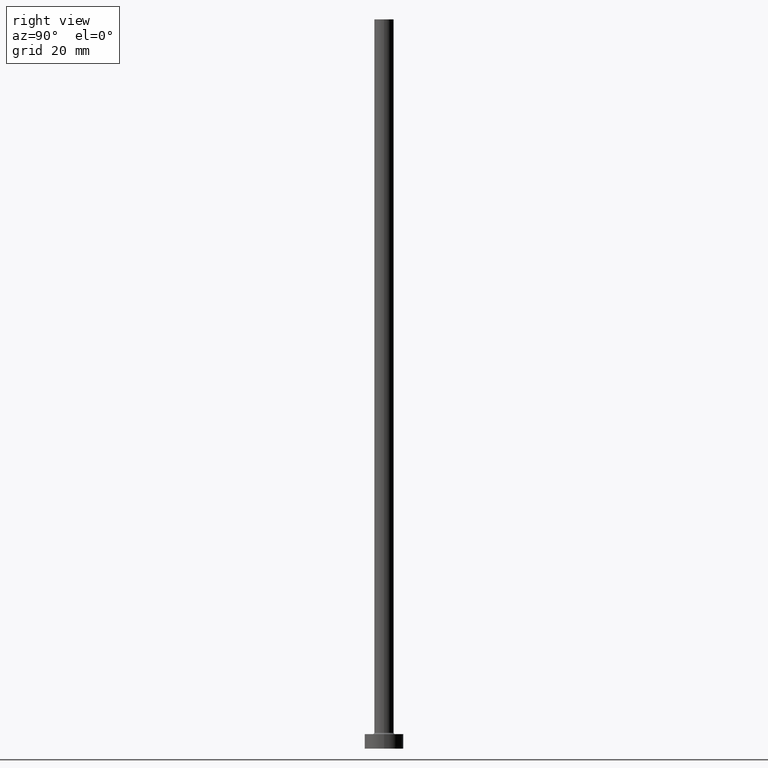
[diagram: clean part render]
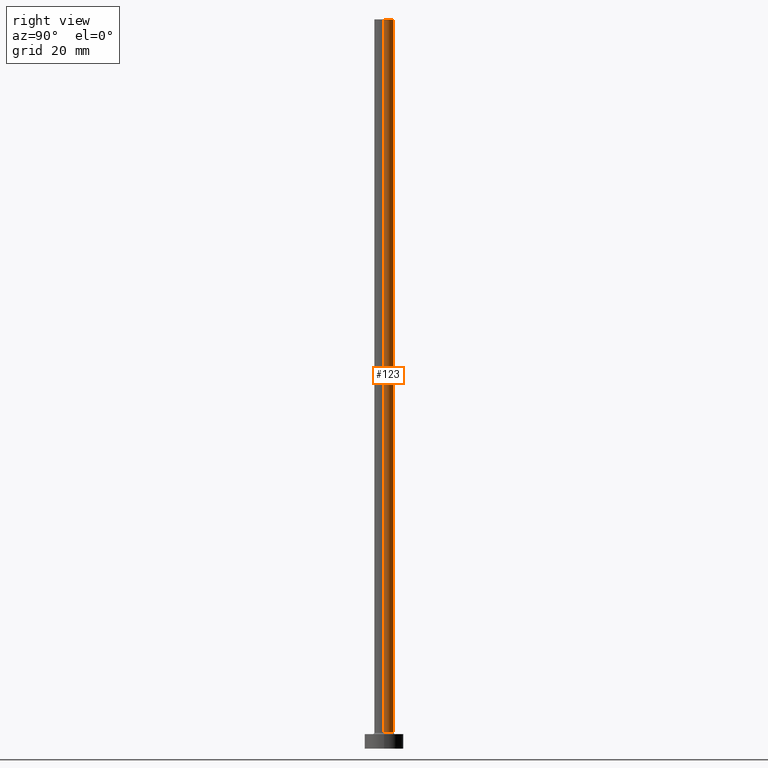
[diagram: same view with one face highlighted and labeled with its STEP entity id]
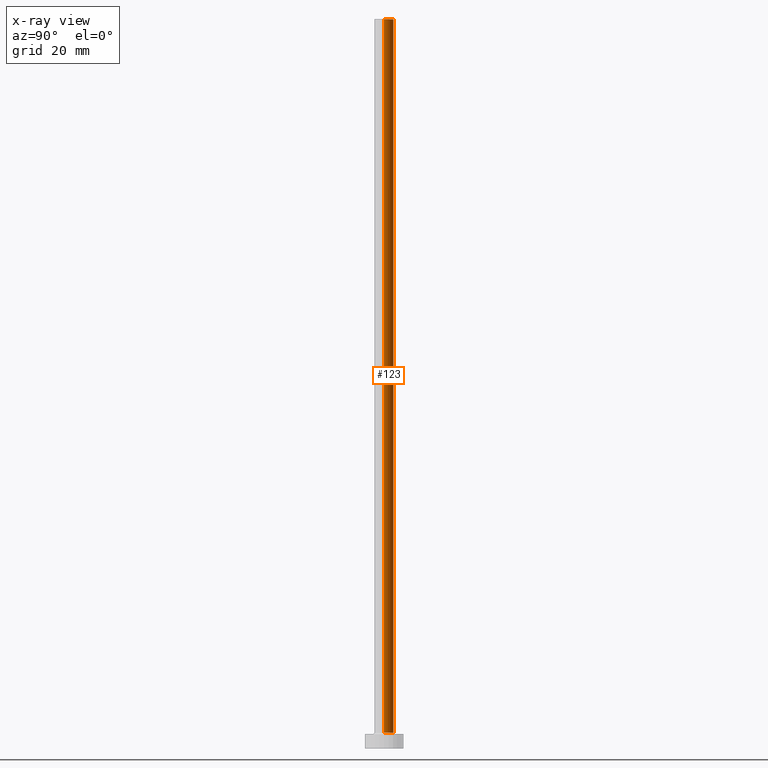
[diagram: x-ray of the same camera — body ghosted, the highlighted face saturated]
A machine part, right view. The second image highlights one B-rep face of the part: STEP entity #123.
The next image is the same camera in x-ray: the body ghosted, the highlighted face saturated — about 0% of this face is hidden behind the body in this view.
In plain terms, the highlighted cylindrical surface (edge-blend (fillet) strip) has radius 2 mm, axis along (-0, -0, -1).
Its self-contained STEP definition (entity closure, byte-faithful):
#17 = ORIENTED_EDGE ( 'NONE', *, *, #399, .F. ) ;
#53 = CARTESIAN_POINT ( 'NONE',  ( 2.000000000000000000, 2.449293598294706414E-16, 150.0000000000000000 ) ) ;
#54 = LINE ( 'NONE', #332, #109 ) ;
#56 = CIRCLE ( 'NONE', #285, 2.000000000000000000 ) ;
#61 = DIRECTION ( 'NONE',  ( -0.000000000000000000, -0.000000000000000000, -1.000000000000000000 ) ) ;
#62 = EDGE_LOOP ( 'NONE', ( #296, #130, #242, #17 ) ) ;
#109 = VECTOR ( 'NONE', #192, 1000.000000000000000 ) ;
#123 = ADVANCED_FACE ( 'NONE', ( #375 ), #196, .T. ) ;
#130 = ORIENTED_EDGE ( 'NONE', *, *, #206, .T. ) ;
#131 = CARTESIAN_POINT ( 'NONE',  ( -2.000000000000000000, 0.000000000000000000, 150.0000000000000000 ) ) ;
#132 = EDGE_CURVE ( 'NONE', #422, #244, #259, .T. ) ;
#135 = CARTESIAN_POINT ( 'NONE',  ( 2.000000000000000000, 2.449293598294706414E-16, 3.299999999999997158 ) ) ;
#143 = CARTESIAN_POINT ( 'NONE',  ( -2.000000000000000000, 0.000000000000000000, 3.299999999999997158 ) ) ;
#163 = CARTESIAN_POINT ( 'NONE',  ( 0.000000000000000000, 0.000000000000000000, 150.0000000000000000 ) ) ;
#169 = CARTESIAN_POINT ( 'NONE',  ( -2.000000000000000000, 0.000000000000000000, 150.0000000000000000 ) ) ;
#178 = DIRECTION ( 'NONE',  ( 1.000000000000000000, 0.000000000000000000, 0.000000000000000000 ) ) ;
#179 = LINE ( 'NONE', #131, #386 ) ;
#192 = DIRECTION ( 'NONE',  ( -0.000000000000000000, -0.000000000000000000, -1.000000000000000000 ) ) ;
#196 = CYLINDRICAL_SURFACE ( 'NONE', #453, 2.000000000000000000 ) ;
#200 = DIRECTION ( 'NONE',  ( -1.000000000000000000, 0.000000000000000000, 0.000000000000000000 ) ) ;
#206 = EDGE_CURVE ( 'NONE', #422, #356, #54, .T. ) ;
#235 = CARTESIAN_POINT ( 'NONE',  ( 0.000000000000000000, 0.000000000000000000, 150.0000000000000000 ) ) ;
#237 = AXIS2_PLACEMENT_3D ( 'NONE', #163, #301, #337 ) ;
#242 = ORIENTED_EDGE ( 'NONE', *, *, #363, .T. ) ;
#243 = CARTESIAN_POINT ( 'NONE',  ( 0.000000000000000000, 0.000000000000000000, 3.299999999999997158 ) ) ;
#244 = VERTEX_POINT ( 'NONE', #169 ) ;
#259 = CIRCLE ( 'NONE', #237, 2.000000000000000000 ) ;
#269 = VERTEX_POINT ( 'NONE', #143 ) ;
#285 = AXIS2_PLACEMENT_3D ( 'NONE', #243, #350, #178 ) ;
#296 = ORIENTED_EDGE ( 'NONE', *, *, #132, .F. ) ;
#301 = DIRECTION ( 'NONE',  ( 0.000000000000000000, 0.000000000000000000, 1.000000000000000000 ) ) ;
#332 = CARTESIAN_POINT ( 'NONE',  ( 2.000000000000000000, 2.449293598294706414E-16, 150.0000000000000000 ) ) ;
#337 = DIRECTION ( 'NONE',  ( 1.000000000000000000, 0.000000000000000000, 0.000000000000000000 ) ) ;
#350 = DIRECTION ( 'NONE',  ( 0.000000000000000000, 0.000000000000000000, 1.000000000000000000 ) ) ;
#356 = VERTEX_POINT ( 'NONE', #135 ) ;
#361 = DIRECTION ( 'NONE',  ( -0.000000000000000000, -0.000000000000000000, -1.000000000000000000 ) ) ;
#363 = EDGE_CURVE ( 'NONE', #356, #269, #56, .T. ) ;
#375 = FACE_OUTER_BOUND ( 'NONE', #62, .T. ) ;
#386 = VECTOR ( 'NONE', #361, 1000.000000000000000 ) ;
#399 = EDGE_CURVE ( 'NONE', #244, #269, #179, .T. ) ;
#422 = VERTEX_POINT ( 'NONE', #53 ) ;
#453 = AXIS2_PLACEMENT_3D ( 'NONE', #235, #61, #200 ) ;